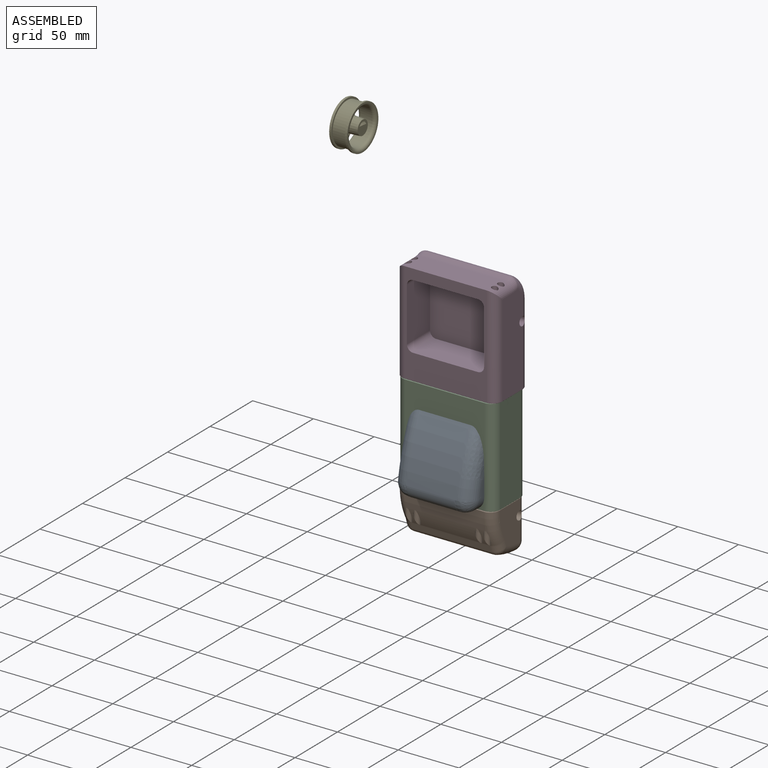
[diagram: assembled view]
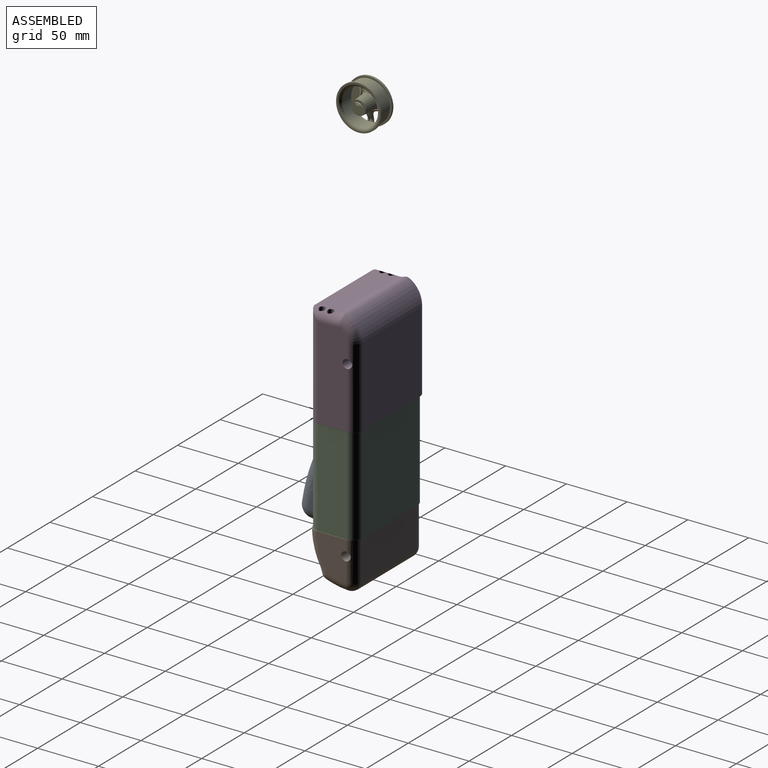
[diagram: assembled view, second angle]
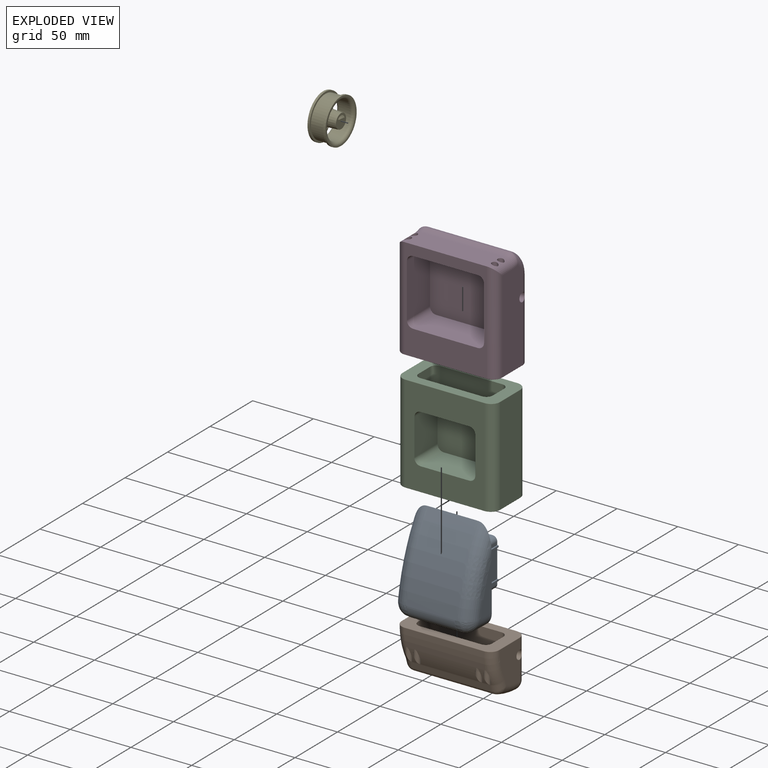
[diagram: exploded view]
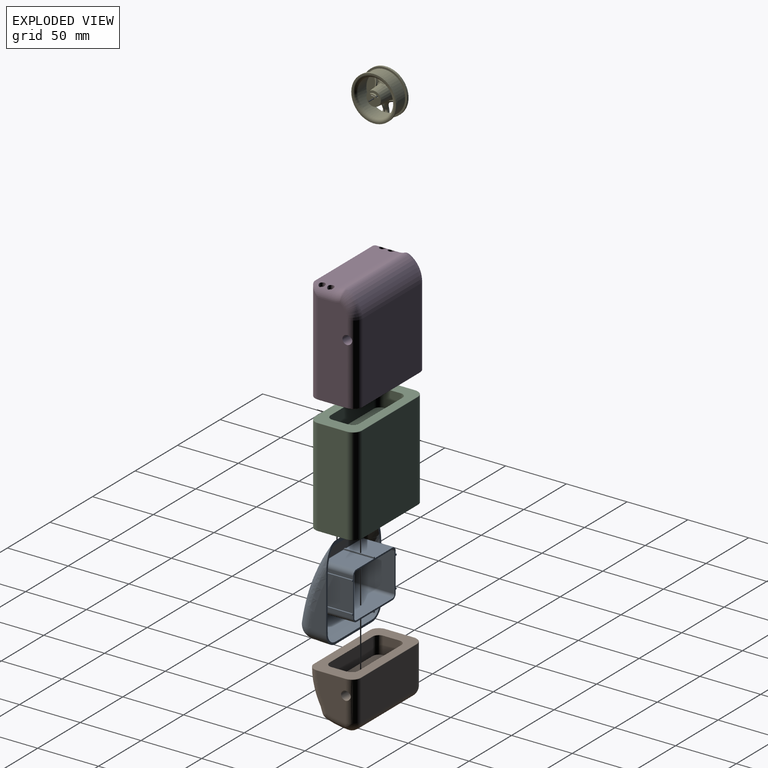
[diagram: exploded view, second angle]
ASSEMBLY  parts=5 mates=3
PART A: 98 faces, bbox 84.7x57.6x92.4 mm
  f0: torus R=130.98mm, axis (1,0,0), area 106.8mm2, adj f20,f27,f28,f29,f30,f33
  f1: torus R=130.98mm, axis (1,0,0), area 106.8mm2, adj f20,f23,f24,f25,f32,f34
  f2: bspline ~13.13x12.7mm, area 138.5mm2, adj f4,f5,f10
  f3: bspline ~13.13x12.7mm, area 138.5mm2, adj f4,f12,f14
  f4: cylinder r=10.16mm len=39.37mm, axis (1,0,0), area 642.2mm2, adj f2,f3,f11,f15
  f5: revolved ~66.6x35.76mm, area 1150.9mm2, adj f2,f15,f16,f21
  f6: revolved ~16.14x11.73mm, area 255.8mm2, adj f7,f18,f19,f21
  f7: plane 39.39x12.34mm, normal (-1,0,0), area 284.4mm2, adj f6,f21,f43
  f8: plane 39.4x12.34mm, normal (1,0,0), area 284.4mm2, adj f9,f21,f91
  f9: revolved ~16.14x11.73mm, area 255.8mm2, adj f8,f17,f18,f21
  f10: revolved ~16.33x13.5mm, area 298.4mm2, adj f2,f11,f16,f21
  f11: cylinder r=152.4mm len=39.37mm, axis (1,0,0), area 644.1mm2, adj f4,f10,f12,f21
  f12: revolved ~16.33x13.5mm, area 298.5mm2, adj f3,f11,f13,f21
  f13: plane 39.38x12.33mm, normal (-1,0,0), area 284.4mm2, adj f12,f14,f21
  f14: revolved ~66.6x35.76mm, area 1151.9mm2, adj f3,f13,f15,f21
  f15: cylinder r=152.4mm len=64.8mm, axis (1,0,0), area 2763mm2, adj f4,f5,f14,f21
  f16: plane 39.38x12.33mm, normal (1,0,0), area 284.4mm2, adj f5,f10,f21
  f17: bspline ~11.32x10.92mm, area 91mm2, adj f9,f22,f91
  f18: cylinder r=150.62mm len=39.37mm, axis (1,0,0), area 636.6mm2, adj f6,f9,f21,f22
  f19: bspline ~11.32x10.92mm, area 91mm2, adj f6,f22,f43
  f20: cylinder r=150.62mm len=39.37mm, axis (1,0,0), area 1437.8mm2, adj f0,f1,f26,f31
  f21: plane 92.36x79.91mm, normal (0,1,0), area 535.9mm2, adj f5,f6,f7,f8,f9,f10,f11,f12
  f22: cylinder r=8.38mm len=39.37mm, axis (1,0,0), area 529.8mm2, adj f17,f18,f19,f54
  f23: torus R=149.22mm, axis (1,0,0), area 60.6mm2, adj f1,f24,f34,f55
  f24: bspline ~2.83x2.54mm, area 7.1mm2, adj f1,f23,f25,f56
  f25: cylinder r=1.27mm len=1.59mm, axis (1,0.01,0), area 3.5mm2, adj f1,f24,f26,f57
  f26: cylinder r=1.27mm len=39.37mm, axis (-1,0,0), area 89.6mm2, adj f20,f25,f27,f57
  f27: cylinder r=1.27mm len=1.59mm, axis (1,-0.01,0), area 3.5mm2, adj f0,f26,f28,f57
  f28: bspline ~2.83x2.55mm, area 7.1mm2, adj f0,f27,f29,f58
  f29: torus R=149.23mm, axis (1,0,0), area 60.9mm2, adj f0,f28,f30,f59
  f30: bspline ~2.54x2.54mm, area 4.9mm2, adj f0,f29,f33,f60
  f31: cylinder r=1.27mm len=39.37mm, axis (1,0,0), area 55.4mm2, adj f20,f32,f33,f61
  f32: torus R=33.16mm, axis (0,0,1), area 2.2mm2, adj f1,f31,f34,f61
  f33: cylinder r=1.27mm len=1.6mm, axis (1,-0.01,0), area 2.2mm2, adj f0,f30,f31,f61
  f34: bspline ~2.54x2.54mm, area 4.9mm2, adj f1,f23,f32,f62
  f35: torus R=149.27mm, axis (1,0,0), area 1.3mm2, adj f36,f63,f64,f91
  f36: bspline ~4.18x4.07mm, area 2.8mm2, adj f35,f37,f65,f91
  f37: torus R=38.33mm, axis (0,0,1), area 0.5mm2, adj f36,f38,f66,f91
  f38: cylinder r=0.25mm len=19.05mm, axis (1,0,0), area 6.6mm2, adj f37,f54,f66,f67
  f39: cylinder r=0.25mm len=19.05mm, axis (1,0,0), area 6.6mm2, adj f40,f54,f69,f70
  f40: torus R=38.33mm, axis (0,0,1), area 0.5mm2, adj f39,f41,f43,f70
  f41: bspline ~4.18x4.08mm, area 2.8mm2, adj f40,f42,f43,f71
  f42: torus R=149.15mm, axis (1,0,0), area 1.3mm2, adj f41,f43,f72,f73
  f43: revolved ~63.43x32.65mm, area 820.6mm2, adj f7,f19,f21,f40,f41,f42,f44,f45
  f44: torus R=149.38mm, axis (1,0,0), area 13.2mm2, adj f43,f75,f76,f77
  f45: torus R=149.38mm, axis (1,0,0), area 1.5mm2, adj f43,f46,f79,f80
  f46: bspline ~4.19x4.18mm, area 3.3mm2, adj f43,f45,f47,f81
  f47: torus R=34.67mm, axis (0,0,1), area 0.8mm2, adj f43,f46,f48,f82
  f48: cylinder r=0.25mm len=19.05mm, axis (-1,0,0), area 9.9mm2, adj f47,f49,f82,f83
  f49: cylinder r=150.62mm len=39.37mm, axis (1,0,0), area 620.6mm2, adj f21,f43,f48,f51,f83,f84,f85,f91
  f50: torus R=34.67mm, axis (0,0,1), area 0.8mm2, adj f51,f52,f86,f91
  f51: cylinder r=0.25mm len=19.05mm, axis (-1,0,0), area 9.9mm2, adj f49,f50,f85,f86
  f52: bspline ~4.19x4.18mm, area 3.4mm2, adj f50,f53,f87,f91
  f53: torus R=149.17mm, axis (1,0,0), area 1.5mm2, adj f52,f88,f89,f91
  f54: cylinder r=150.62mm len=39.37mm, axis (1,0,0), area 341.9mm2, adj f22,f38,f39,f43,f67,f68,f69,f91
  f55: plane 36.78x31.51mm, normal (-1,0,0), area 1002.6mm2, adj f23,f56,f62,f93
  f56: cylinder r=2.54mm len=37.17mm, axis (0,-1,0), area 147.5mm2, adj f24,f55,f57,f93
  f57: plane 42.42x37.19mm, normal (0,0,1), area 1577.5mm2, adj f25,f26,f27,f56,f58,f93
  f58: cylinder r=2.54mm len=37.17mm, axis (0,-1,0), area 147.5mm2, adj f28,f57,f59,f93
  f59: plane 36.78x31.51mm, normal (1,0,0), area 1002.6mm2, adj f29,f58,f60,f93
  f60: cylinder r=2.54mm len=25.57mm, axis (0,-1,0), area 101mm2, adj f30,f59,f61,f93
  f61: plane 42.42x25.09mm, normal (0,0,-1), area 1064.3mm2, adj f31,f32,f33,f60,f62,f93
  f62: cylinder r=2.54mm len=25.57mm, axis (0,-1,0), area 101mm2, adj f34,f55,f61,f93
  f63: plane 36.61x1.12mm, normal (0,0,-1), area 40.7mm2, adj f35,f64,f90,f91,f93
  f64: plane 36.96x2.54mm, normal (-1,0,0), area 93.1mm2, adj f35,f63,f65,f93
  f65: cylinder r=3.81mm len=38.81mm, axis (0,-1,0), area 226.7mm2, adj f36,f64,f66,f93
  f66: plane 38.83x20.58mm, normal (0,0,-1), area 798.8mm2, adj f37,f38,f65,f67,f93
  f67: plane 39.26x1.12mm, normal (-1,0,0), area 43.7mm2, adj f38,f54,f66,f68,f93
  f68: plane 39.26x1.27mm, normal (0,0,-1), area 49.9mm2, adj f54,f67,f69,f93
  f69: plane 39.26x1.12mm, normal (1,0,0), area 43.7mm2, adj f39,f54,f68,f70,f93
  f70: plane 38.83x20.58mm, normal (0,0,-1), area 798.8mm2, adj f39,f40,f69,f71,f93
  f71: cylinder r=3.81mm len=38.81mm, axis (0,-1,0), area 226.7mm2, adj f41,f70,f72,f93
  f72: plane 36.96x2.54mm, normal (1,0,0), area 93.1mm2, adj f42,f71,f73,f93
  f73: plane 36.63x1.14mm, normal (0,0,-1), area 40.7mm2, adj f42,f43,f72,f74,f93
  f74: plane 36.15x1.28mm, normal (1,0,0), area 45.7mm2, adj f43,f73,f75,f93
  f75: plane 36.3x1.14mm, normal (0,0,1), area 40.4mm2, adj f43,f44,f74,f76,f93
  f76: plane 36.02x23.88mm, normal (1,0,0), area 768.2mm2, adj f44,f75,f77,f93
  f77: plane 27.88x1.15mm, normal (0,0,-1), area 30.9mm2, adj f43,f44,f76,f78,f93
  f78: plane 27.38x1.3mm, normal (1,0,0), area 34.4mm2, adj f43,f77,f79,f93
  f79: plane 27.3x1.14mm, normal (0,0,1), area 30.3mm2, adj f43,f45,f78,f80,f93
  f80: plane 26.99x2.54mm, normal (1,0,0), area 67mm2, adj f45,f79,f81,f93
  f81: cylinder r=3.81mm len=25.78mm, axis (0,-1,0), area 151.3mm2, adj f46,f80,f82,f93
  f82: plane 24.81x20.58mm, normal (0,0,1), area 510.4mm2, adj f47,f48,f81,f83,f93
  f83: plane 25.06x1.12mm, normal (1,0,0), area 27.8mm2, adj f48,f49,f82,f84,f93
  f84: plane 24.64x1.27mm, normal (0,0,1), area 31.3mm2, adj f49,f83,f85,f93
  f85: plane 25.06x1.12mm, normal (-1,0,0), area 27.8mm2, adj f49,f51,f84,f86,f93
  f86: plane 24.81x20.58mm, normal (0,0,1), area 510.4mm2, adj f50,f51,f85,f87,f93
  f87: cylinder r=3.81mm len=25.78mm, axis (0,-1,0), area 151.3mm2, adj f52,f86,f88,f93
  f88: plane 26.99x2.54mm, normal (-1,0,0), area 67mm2, adj f53,f87,f89,f93
  f89: plane 27.3x1.15mm, normal (0,0,1), area 30.1mm2, adj f53,f88,f91,f92,f93
  f90: plane 36.16x1.29mm, normal (-1,0,0), area 45.7mm2, adj f63,f91,f93,f94
  f91: revolved ~63.43x32.65mm, area 822.9mm2, adj f8,f17,f21,f35,f36,f37,f49,f50
  f92: plane 27.34x1.27mm, normal (-1,0,0), area 34.2mm2, adj f89,f91,f93,f95
  f93: plane 52.27x41.35mm, normal (0,1,0), area 221.6mm2, adj f55,f56,f57,f58,f59,f60,f61,f62
  f94: plane 36.31x1.14mm, normal (0,0,1), area 40.2mm2, adj f90,f91,f93,f96,f97
  f95: plane 27.86x1.13mm, normal (0,0,-1), area 30.9mm2, adj f91,f92,f93,f96,f97
  f96: plane 36.02x23.88mm, normal (-1,0,0), area 768.2mm2, adj f93,f94,f95,f97
  f97: torus R=149.38mm, axis (1,0,0), area 13.1mm2, adj f91,f94,f95,f96
PART B: 56 faces, bbox 82.8x45.3x42.4 mm
  f0: bspline ~7.62x6.85mm, area 22.5mm2, adj f5,f6,f7
  f1: cone r=1.84mm half-angle=59deg, axis (1,0,0), area 49.7mm2, adj f8
  f2: plane 71.93x0.99mm, normal (0,-0.35,-0.94), area 56.5mm2, adj f3,f9,f10,f16
  f3: plane 72.71x2.57mm, normal (0,0.79,-0.61), area 138.5mm2, adj f2,f4,f9,f16
  f4: cylinder r=7.62mm len=65.28mm, axis (-1,0,0), area 232.7mm2, adj f3,f9,f16,f17
  f5: cylinder r=5.08mm len=65.28mm, axis (1,0,0), area 290mm2, adj f0,f17,f18,f19
  f6: cylinder r=7.62mm len=8.9mm, axis (0,-0.32,0.95), area 56mm2, adj f0,f14,f19,f21
  f7: torus R=52.23mm, axis (-1,0,0), area 215.2mm2, adj f0,f9,f17,f21
  f8: cylinder r=3.68mm len=8.89mm, axis (-1,0,0), area 200.2mm2, adj f1,f21,f22
  f9: sphere r=7.62mm, area 89.3mm2, adj f2,f3,f4,f7,f10,f22
  f10: cylinder r=7.62mm len=65.28mm, axis (-1,0,0), area 418.6mm2, adj f2,f9,f16,f23
  f11: cone r=1.27mm half-angle=59deg, axis (0,0,-1), area 23.6mm2, adj f25
  f12: cone r=1.27mm half-angle=59deg, axis (0,0,-1), area 23.6mm2, adj f26
  f13: cone r=1.27mm half-angle=59deg, axis (0,0,-1), area 23.6mm2, adj f28
  f14: torus R=12.7mm, axis (1,0,0), area 15.8mm2, adj f6,f21,f27,f28,f29
  f15: cone r=1.84mm half-angle=59deg, axis (-1,0,0), area 49.7mm2, adj f30
  f16: sphere r=7.62mm, area 80mm2, adj f2,f3,f4,f10,f31,f32
  f17: cylinder r=59.85mm len=65.28mm, axis (1,0,0), area 1273.5mm2, adj f4,f5,f7,f32
  f18: bspline ~7.62x6.85mm, area 22.5mm2, adj f5,f32,f33
  f19: plane 65.28x5.01mm, normal (0,-0.95,-0.32), area 344.7mm2, adj f5,f6,f27,f33
  f20: plane 60.96x23.62mm, normal (0,0,1), area 1417.8mm2, adj f34,f35,f36,f37,f38,f39,f40,f41
  f21: plane 32.7x23.62mm, normal (1,0,0), area 619mm2, adj f6,f7,f8,f14,f22,f29,f42
  f22: cylinder r=7.62mm len=32.7mm, axis (0,0,-1), area 377.3mm2, adj f8,f9,f21,f23,f43
  f23: plane 65.28x32.7mm, normal (0,1,0), area 2134.9mm2, adj f10,f22,f31,f44
  f24: cone r=1.27mm half-angle=59deg, axis (0,0,-1), area 23.6mm2, adj f47
  f25: cylinder r=2.54mm len=12.39mm, axis (0,0,1), area 108.1mm2, adj f11,f27,f48
  f26: cylinder r=2.54mm len=12.39mm, axis (0,0,1), area 108.1mm2, adj f12,f27,f48
  f27: cylinder r=5.08mm len=65.28mm, axis (1,0,0), area 54.1mm2, adj f14,f19,f25,f26,f28,f46,f47,f48
  f28: cylinder r=2.54mm len=12.74mm, axis (0,0,1), area 106.8mm2, adj f13,f14,f27,f29,f48
  f29: torus R=50.82mm, axis (-1,0,0), area 308.1mm2, adj f14,f21,f28,f45,f48
  f30: cylinder r=3.68mm len=8.89mm, axis (-1,0,0), area 200.2mm2, adj f15,f31,f50
  f31: cylinder r=7.62mm len=32.7mm, axis (0,0,-1), area 377.3mm2, adj f16,f23,f30,f49,f50
  f32: torus R=52.23mm, axis (1,0,0), area 215.2mm2, adj f16,f17,f18,f50
  f33: cylinder r=7.62mm len=8.9mm, axis (0,0.32,-0.95), area 56mm2, adj f18,f19,f46,f50
  f34: plane 14.48x13.46mm, normal (-1,0,0), area 194.9mm2, adj f20,f35,f41,f51
  f35: cylinder r=5.08mm len=14.48mm, axis (0,0,-1), area 115.5mm2, adj f20,f34,f36,f51
  f36: plane 50.8x14.48mm, normal (0,1,0), area 735.5mm2, adj f20,f35,f37,f51
  f37: cylinder r=5.08mm len=14.48mm, axis (0,0,-1), area 115.5mm2, adj f20,f36,f38,f51
  f38: plane 14.48x13.46mm, normal (1,0,0), area 194.9mm2, adj f20,f37,f39,f51
  f39: cylinder r=5.08mm len=14.48mm, axis (0,0,-1), area 115.5mm2, adj f20,f38,f40,f51
  f40: plane 50.8x14.48mm, normal (0,-1,0), area 735.5mm2, adj f20,f39,f41,f51
  f41: cylinder r=5.08mm len=14.48mm, axis (0,0,-1), area 115.5mm2, adj f20,f34,f40,f51
  f42: cylinder r=0.25mm len=23.62mm, axis (0,-1,0), area 9.4mm2, adj f21,f43,f45,f51
  f43: torus R=7.37mm, axis (0,0,-1), area 4.7mm2, adj f22,f42,f44,f51
  f44: cylinder r=0.25mm len=65.28mm, axis (1,0,0), area 26mm2, adj f23,f43,f49,f51
  f45: torus R=7.37mm, axis (0,0,1), area 4.7mm2, adj f29,f42,f51,f52
  f46: torus R=12.7mm, axis (-1,0,0), area 15.8mm2, adj f27,f33,f47,f50,f53
  f47: cylinder r=2.54mm len=12.74mm, axis (0,0,1), area 106.9mm2, adj f24,f27,f46,f48,f53
  f48: cylinder r=58.44mm len=65.28mm, axis (1,0,0), area 1699.7mm2, adj f25,f26,f27,f28,f29,f47,f52,f53
  f49: torus R=7.37mm, axis (0,0,-1), area 4.7mm2, adj f31,f44,f51,f54
  f50: plane 32.7x23.62mm, normal (-1,0,0), area 619mm2, adj f30,f31,f32,f33,f46,f53,f54
  f51: plane 80.03x38.38mm, normal (0,0,1), area 1604.2mm2, adj f34,f35,f36,f37,f38,f39,f40,f41
  f52: cylinder r=0.25mm len=65.28mm, axis (-1,0,0), area 26.1mm2, adj f45,f48,f51,f55
  f53: torus R=50.82mm, axis (1,0,0), area 308.1mm2, adj f46,f47,f48,f50,f55
  f54: cylinder r=0.25mm len=23.62mm, axis (0,1,0), area 9.4mm2, adj f49,f50,f51,f55
  f55: torus R=7.37mm, axis (0,0,1), area 4.7mm2, adj f51,f52,f53,f54
PART C: 53 faces, bbox 81.8x40.1x80.5 mm
  f0: plane 63.5x25.4mm, normal (0,0,-1), area 1590.7mm2, adj f1,f2,f3,f4,f5,f6,f7,f8
  f1: cylinder r=5.08mm len=14.48mm, axis (0,0,1), area 115.5mm2, adj f0,f2,f8,f21
  f2: plane 53.34x14.48mm, normal (0,1,0), area 772.3mm2, adj f0,f1,f3,f21
  f3: cylinder r=5.08mm len=14.48mm, axis (0,0,1), area 115.5mm2, adj f0,f2,f4,f21
  f4: plane 15.24x14.48mm, normal (1,0,0), area 220.6mm2, adj f0,f3,f5,f21
  f5: cylinder r=5.08mm len=14.48mm, axis (0,0,1), area 115.5mm2, adj f0,f4,f6,f21
  f6: plane 53.34x14.48mm, normal (0,-1,0), area 772.3mm2, adj f0,f5,f7,f21
  f7: cylinder r=5.08mm len=14.48mm, axis (0,0,1), area 115.5mm2, adj f0,f6,f8,f21
  f8: plane 15.24x14.48mm, normal (-1,0,0), area 220.6mm2, adj f0,f1,f7,f21
  f9: cylinder r=0.25mm len=65.28mm, axis (-1,0,0), area 26mm2, adj f10,f12,f16,f21
  f10: torus R=7.37mm, axis (0,0,1), area 4.7mm2, adj f9,f11,f17,f21
  f11: cylinder r=0.25mm len=23.62mm, axis (0,-1,0), area 9.4mm2, adj f10,f19,f20,f21
  f12: torus R=7.37mm, axis (0,0,1), area 4.7mm2, adj f9,f13,f15,f21
  f13: cylinder r=0.25mm len=23.62mm, axis (0,1,0), area 9.4mm2, adj f12,f21,f22,f23
  f14: plane 60.96x23.62mm, normal (0,0,1), area 1417.8mm2, adj f24,f25,f26,f27,f28,f29,f30,f31
  f15: cylinder r=7.62mm len=80.01mm, axis (0,0,-1), area 957.7mm2, adj f12,f16,f23,f33
  f16: plane 80.01x65.28mm, normal (0,1,0), area 5222.9mm2, adj f9,f15,f17,f34
  f17: cylinder r=7.62mm len=80.01mm, axis (0,0,-1), area 957.7mm2, adj f10,f16,f19,f35
  f18: plane 50.17x40.39mm, normal (0,-1,0), area 2003.8mm2, adj f37,f38,f39,f40,f41,f42,f43,f44
  f19: plane 80.01x23.62mm, normal (-1,0,0), area 1890mm2, adj f11,f17,f36,f45
  f20: torus R=7.37mm, axis (0,0,1), area 4.7mm2, adj f11,f21,f45,f46
  f21: plane 80.01x38.35mm, normal (0,0,-1), area 1431.4mm2, adj f1,f2,f3,f4,f5,f6,f7,f8
  f22: torus R=7.37mm, axis (0,0,1), area 4.7mm2, adj f13,f21,f46,f47
  f23: plane 80.01x23.62mm, normal (1,0,0), area 1890mm2, adj f13,f15,f32,f47
  f24: plane 14.48x13.46mm, normal (1,0,0), area 194.9mm2, adj f14,f25,f31,f49
  f25: cylinder r=5.08mm len=14.48mm, axis (0,0,-1), area 115.5mm2, adj f14,f24,f26,f49
  f26: plane 50.8x14.48mm, normal (0,-1,0), area 735.5mm2, adj f14,f25,f27,f49
  f27: cylinder r=5.08mm len=14.48mm, axis (0,0,-1), area 115.5mm2, adj f14,f26,f28,f49
  f28: plane 14.48x13.46mm, normal (-1,0,0), area 194.9mm2, adj f14,f27,f29,f49
  f29: cylinder r=5.08mm len=14.48mm, axis (0,0,-1), area 115.5mm2, adj f14,f28,f30,f49
  f30: plane 50.8x14.48mm, normal (0,1,0), area 735.5mm2, adj f14,f29,f31,f49
  f31: cylinder r=5.08mm len=14.48mm, axis (0,0,-1), area 115.5mm2, adj f14,f24,f30,f49
  f32: cylinder r=0.25mm len=23.62mm, axis (0,-1,0), area 9.4mm2, adj f23,f33,f48,f49
  f33: torus R=7.37mm, axis (0,0,-1), area 4.7mm2, adj f15,f32,f34,f49
  f34: cylinder r=0.25mm len=65.28mm, axis (1,0,0), area 26mm2, adj f16,f33,f35,f49
  f35: torus R=7.37mm, axis (0,0,-1), area 4.7mm2, adj f17,f34,f36,f49
  f36: cylinder r=0.25mm len=23.62mm, axis (0,1,0), area 9.4mm2, adj f19,f35,f49,f50
  f37: plane 30.23x27.18mm, normal (1,0,0), area 821.5mm2, adj f18,f38,f44,f51
  f38: cylinder r=5.08mm len=27.18mm, axis (0,1,0), area 216.9mm2, adj f18,f37,f39,f51
  f39: plane 40.01x27.18mm, normal (0,0,-1), area 1087.3mm2, adj f18,f38,f40,f51
  f40: cylinder r=5.08mm len=27.18mm, axis (0,1,0), area 216.9mm2, adj f18,f39,f41,f51
  f41: plane 30.23x27.18mm, normal (-1,0,0), area 821.5mm2, adj f18,f40,f42,f51
  f42: cylinder r=5.08mm len=27.18mm, axis (0,1,0), area 216.9mm2, adj f18,f41,f43,f51
  f43: plane 40.01x27.18mm, normal (0,0,1), area 1087.3mm2, adj f18,f42,f44,f51
  f44: cylinder r=5.08mm len=27.18mm, axis (0,1,0), area 216.9mm2, adj f18,f37,f43,f51
  f45: cylinder r=7.62mm len=80.01mm, axis (0,0,-1), area 957.7mm2, adj f19,f20,f50,f51
  f46: cylinder r=0.25mm len=65.28mm, axis (1,0,0), area 26mm2, adj f20,f21,f22,f51
  f47: cylinder r=7.62mm len=80.01mm, axis (0,0,-1), area 957.7mm2, adj f22,f23,f48,f51
  f48: torus R=7.37mm, axis (0,0,-1), area 4.7mm2, adj f32,f47,f49,f52
  f49: plane 80.01x38.35mm, normal (0,0,1), area 1604.3mm2, adj f24,f25,f26,f27,f28,f29,f30,f31
  f50: torus R=7.37mm, axis (0,0,-1), area 4.7mm2, adj f36,f45,f49,f52
  f51: plane 80.01x65.28mm, normal (0,-1,0), area 3219.1mm2, adj f37,f38,f39,f40,f41,f42,f43,f44
  f52: cylinder r=0.25mm len=65.28mm, axis (-1,0,0), area 26mm2, adj f48,f49,f50,f51
PART D: 62 faces, bbox 83.9x41.5x86.5 mm
  f0: cone r=1.27mm half-angle=59deg, axis (0,0,1), area 23.6mm2, adj f6
  f1: cone r=1.27mm half-angle=59deg, axis (0,0,1), area 23.6mm2, adj f7
  f2: plane 63.5x54.15mm, normal (0,-1,0), area 3416.4mm2, adj f10,f11,f12,f13,f14,f15,f16,f17
  f3: cone r=1.84mm half-angle=59deg, axis (-1,0,0), area 49.7mm2, adj f18
  f4: cone r=1.27mm half-angle=59deg, axis (0,0,1), area 23.6mm2, adj f25
  f5: cone r=1.27mm half-angle=59deg, axis (0,0,1), area 23.6mm2, adj f26
  f6: cylinder r=2.54mm len=5.08mm, axis (0,0,-1), area 42.3mm2, adj f0,f9,f27
  f7: cylinder r=2.54mm len=5.08mm, axis (0,0,-1), area 42.3mm2, adj f1,f9,f27
  f8: torus R=22.04mm, axis (1,0,0), area 73.2mm2, adj f9,f19,f20,f24,f29
  f9: cylinder r=7.62mm len=19.05mm, axis (0,1,0), area 143.2mm2, adj f6,f7,f8,f27,f29,f30
  f10: plane 43.99x27.18mm, normal (-1,0,0), area 1195.6mm2, adj f2,f11,f17,f31
  f11: cylinder r=5.08mm len=27.18mm, axis (0,1,0), area 216.9mm2, adj f2,f10,f12,f31
  f12: plane 53.34x27.18mm, normal (0,0,1), area 1449.7mm2, adj f2,f11,f13,f31
  f13: cylinder r=5.08mm len=27.18mm, axis (0,1,0), area 216.9mm2, adj f2,f12,f14,f31
  f14: plane 43.99x27.18mm, normal (1,0,0), area 1195.6mm2, adj f2,f13,f15,f31
  f15: cylinder r=5.08mm len=27.18mm, axis (0,1,0), area 216.9mm2, adj f2,f14,f16,f31
  f16: plane 53.34x27.18mm, normal (0,0,-1), area 1449.7mm2, adj f2,f15,f17,f31
  f17: cylinder r=5.08mm len=27.18mm, axis (0,1,0), area 216.9mm2, adj f2,f10,f16,f31
  f18: cylinder r=3.68mm len=8.89mm, axis (-1,0,0), area 200.2mm2, adj f3,f29,f32
  f19: bspline ~7.92x6.1mm, area 12.3mm2, adj f8,f20,f22,f35
  f20: bspline ~2.72x2.15mm, area 3.1mm2, adj f8,f19,f21,f35
  f21: cylinder r=2.54mm len=67.44mm, axis (-1,0,0), area 82mm2, adj f20,f23,f24,f35
  f22: torus R=13.22mm, axis (-1,0,0), area 233.4mm2, adj f19,f29,f32,f34,f35
  f23: bspline ~2.72x2.13mm, area 3.1mm2, adj f21,f33,f35,f37
  f24: cylinder r=14.42mm len=67.44mm, axis (1,0,0), area 375.5mm2, adj f8,f21,f27,f37
  f25: cylinder r=2.54mm len=5.08mm, axis (0,0,-1), area 42.3mm2, adj f4,f27,f38
  f26: cylinder r=2.54mm len=5.08mm, axis (0,0,-1), area 42.3mm2, adj f5,f27,f38
  f27: plane 67.44x19.05mm, normal (0,0,1), area 1278mm2, adj f6,f7,f9,f24,f25,f26,f31,f38
  f28: plane 63.5x25.4mm, normal (0,0,-1), area 1590.7mm2, adj f40,f41,f42,f43,f44,f45,f46,f47
  f29: plane 76.8x23.93mm, normal (-1,0,0), area 1781.3mm2, adj f8,f9,f18,f22,f30,f32,f48
  f30: cylinder r=7.62mm len=83.46mm, axis (0,0,1), area 953.4mm2, adj f9,f29,f31,f49
  f31: plane 83.46x67.44mm, normal (0,-1,0), area 2212.2mm2, adj f10,f11,f12,f13,f14,f15,f16,f17
  f32: cylinder r=7.62mm len=65.68mm, axis (0,0,1), area 772mm2, adj f18,f22,f29,f52,f53
  f33: bspline ~7.92x6.1mm, area 12.3mm2, adj f23,f35,f37,f54
  f34: cylinder r=20.84mm len=67.44mm, axis (1,0,0), area 1467.8mm2, adj f22,f35,f53,f54
  f35: cylinder r=7.62mm len=71.03mm, axis (1,0,0), area 229.6mm2, adj f19,f20,f21,f22,f23,f33,f34,f54
  f36: cone r=1.84mm half-angle=59deg, axis (1,0,0), area 49.7mm2, adj f55
  f37: torus R=22.04mm, axis (-1,0,0), area 73.2mm2, adj f23,f24,f33,f38,f56
  f38: cylinder r=7.62mm len=19.05mm, axis (0,-1,0), area 143.2mm2, adj f25,f26,f27,f37,f39,f56
  f39: cylinder r=7.62mm len=83.46mm, axis (0,0,1), area 953.4mm2, adj f31,f38,f51,f56
  f40: cylinder r=5.08mm len=14.48mm, axis (0,0,1), area 115.5mm2, adj f28,f41,f47,f58
  f41: plane 53.34x14.48mm, normal (0,1,0), area 772.3mm2, adj f28,f40,f42,f58
  f42: cylinder r=5.08mm len=14.48mm, axis (0,0,1), area 115.5mm2, adj f28,f41,f43,f58
  f43: plane 15.24x14.48mm, normal (1,0,0), area 220.6mm2, adj f28,f42,f44,f58
  f44: cylinder r=5.08mm len=14.48mm, axis (0,0,1), area 115.5mm2, adj f28,f43,f45,f58
  f45: plane 53.34x14.48mm, normal (0,-1,0), area 772.3mm2, adj f28,f44,f46,f58
  f46: cylinder r=5.08mm len=14.48mm, axis (0,0,1), area 115.5mm2, adj f28,f45,f47,f58
  f47: plane 15.24x14.48mm, normal (-1,0,0), area 220.6mm2, adj f28,f40,f46,f58
  f48: cylinder r=0.25mm len=23.93mm, axis (0,1,0), area 9.5mm2, adj f29,f49,f52,f58
  f49: torus R=7.37mm, axis (0,0,1), area 4.7mm2, adj f30,f48,f50,f58
  f50: cylinder r=0.25mm len=67.44mm, axis (-1,0,0), area 26.9mm2, adj f31,f49,f51,f58
  f51: torus R=7.37mm, axis (0,0,1), area 4.7mm2, adj f39,f50,f57,f58
  f52: torus R=7.37mm, axis (0,0,1), area 4.7mm2, adj f32,f48,f58,f59
  f53: plane 67.44x65.68mm, normal (0,1,0), area 4429.6mm2, adj f32,f34,f59,f60
  f54: torus R=13.22mm, axis (1,0,0), area 233.4mm2, adj f33,f34,f35,f56,f60
  f55: cylinder r=3.68mm len=8.89mm, axis (-1,0,0), area 200.2mm2, adj f36,f56,f60
  f56: plane 76.8x23.93mm, normal (1,0,0), area 1781.3mm2, adj f37,f38,f39,f54,f55,f57,f60
  f57: cylinder r=0.25mm len=23.93mm, axis (0,-1,0), area 9.5mm2, adj f51,f56,f58,f61
  f58: plane 82.17x38.66mm, normal (0,0,-1), area 1539.2mm2, adj f40,f41,f42,f43,f44,f45,f46,f47
  f59: cylinder r=0.25mm len=67.44mm, axis (1,0,0), area 26.9mm2, adj f52,f53,f58,f61
  f60: cylinder r=7.62mm len=65.68mm, axis (0,0,1), area 772.1mm2, adj f53,f54,f55,f56,f61
  f61: torus R=7.37mm, axis (0,0,1), area 4.7mm2, adj f57,f58,f59,f60
PART E: 127 faces, bbox 16x41.1x41.1 mm
  f0: plane 37.51x37.51mm, normal (-1,0,0), area -60mm2, adj f1,f2
  f1: cylinder r=16.89mm len=33.78mm, axis (1,0,0), area 1186.1mm2, adj f0,f12
  f2: cylinder r=18.41mm len=36.83mm, axis (1,0,0), area 205.7mm2, adj f0,f19
  f3: bspline ~7.7x3.15mm, area 4.1mm2, adj f4,f21,f22,f33
  f4: torus R=11.46mm, axis (0.93,-0.36,-0.03), area 1.1mm2, adj f3,f15,f23,f33
  f5: torus R=11.46mm, axis (0.93,-0.31,-0.19), area 1.1mm2, adj f6,f14,f27,f33
  f6: bspline ~6.62x4.95mm, area 4.1mm2, adj f5,f7,f28,f33
  f7: torus R=11.46mm, axis (0.93,-0.08,-0.36), area 1.1mm2, adj f6,f18,f29,f33
  f8: cylinder r=4.19mm len=8.38mm, axis (1,0,0), area 109.1mm2, adj f11,f30
  f9: torus R=11.46mm, axis (0.93,0.08,-0.36), area 1.1mm2, adj f10,f17,f31,f33
  f10: bspline ~6.62x4.93mm, area 4.1mm2, adj f9,f20,f32,f33
  f11: torus R=4.45mm, axis (1,0,0), area 8.2mm2, adj f8,f33
  f12: plane 37.51x37.51mm, normal (1,0,0), area -977.8mm2, adj f1,f34
  f13: torus R=13.77mm, axis (1,0,0), area 19.8mm2, adj f14,f15,f33,f35
  f14: bspline ~4.52x2.73mm, area 2.1mm2, adj f5,f13,f27,f36
  f15: bspline ~5.09x1.41mm, area 2.1mm2, adj f4,f13,f23,f41
  f16: torus R=13.77mm, axis (1,0,0), area 19.8mm2, adj f17,f18,f33,f42
  f17: bspline ~5.01x1.41mm, area 2.1mm2, adj f9,f16,f31,f43
  f18: bspline ~5.01x1.41mm, area 2.1mm2, adj f7,f16,f29,f48
  f19: plane 36.9x36.9mm, normal (1,0,0), area 114.3mm2, adj f2,f49
  f20: torus R=11.46mm, axis (0.93,0.31,-0.19), area 1.1mm2, adj f10,f33,f53,f54
  f21: torus R=11.46mm, axis (0.93,-0.28,0.24), area 1.1mm2, adj f3,f33,f56,f57
  f22: cylinder r=6.35mm len=7.48mm, axis (1,0,0), area 20.4mm2, adj f3,f23,f57,f59
  f23: cylinder r=9.96mm len=6.58mm, axis (1,0,0), area 13.1mm2, adj f4,f15,f22,f39,f40,f59
  f24: torus R=11.46mm, axis (0.93,0.14,0.34), area 1.1mm2, adj f25,f33,f51,f60
  f25: bspline ~8.1x1.71mm, area 4.1mm2, adj f24,f26,f33,f61
  f26: torus R=11.46mm, axis (0.93,-0.14,0.34), area 1.1mm2, adj f25,f33,f58,f62
  f27: cylinder r=9.96mm len=6.27mm, axis (1,0,0), area 13.1mm2, adj f5,f14,f28,f37,f38,f66
  f28: cylinder r=6.35mm len=6.36mm, axis (1,0,0), area 20.4mm2, adj f6,f27,f29,f66
  f29: cylinder r=9.96mm len=6.76mm, axis (1,0,0), area 13.1mm2, adj f7,f18,f28,f46,f47,f66
  f30: plane 8.5x8.38mm, normal (-1,0,0), area 9.6mm2, adj f8,f69
  f31: cylinder r=9.96mm len=6.76mm, axis (1,0,0), area 13.1mm2, adj f9,f17,f32,f44,f45,f71
  f32: cylinder r=6.35mm len=6.36mm, axis (1,0,0), area 20.4mm2, adj f10,f31,f53,f71
  f33: cone r=5.98mm half-angle=69.1deg, axis (-1,0,0), area 222.4mm2, adj f3,f4,f5,f6,f7,f9,f10,f11
  f34: cylinder r=18.41mm len=36.83mm, axis (1,0,0), area 205.7mm2, adj f12,f77
  f35: torus R=17.23mm, axis (1,0,0), area 1mm2, adj f13,f36,f41,f115
  f36: bspline ~0.8x0.4mm, area 0.2mm2, adj f14,f35,f37,f115
  f37: torus R=2.76mm, axis (0.11,-0.67,0.73), area 0.8mm2, adj f27,f36,f38,f115
  f38: torus R=13.77mm, axis (1,0,0), area 3mm2, adj f27,f37,f65,f66,f115
  f39: torus R=13.77mm, axis (1,0,0), area 3mm2, adj f23,f40,f59,f63,f115
  f40: torus R=2.76mm, axis (-0.11,0.11,0.99), area 0.8mm2, adj f23,f39,f41,f115
  f41: bspline ~0.69x0.52mm, area 0.2mm2, adj f15,f35,f40,f115
  f42: torus R=17.23mm, axis (1,0,0), area 1mm2, adj f16,f43,f48,f115
  f43: bspline ~0.75x0.38mm, area 0.2mm2, adj f17,f42,f44,f115
  f44: torus R=2.76mm, axis (0.11,-0.91,-0.41), area 0.8mm2, adj f31,f43,f45,f115
  f45: torus R=13.77mm, axis (1,0,0), area 3mm2, adj f31,f44,f70,f71,f115
  f46: torus R=13.77mm, axis (1,0,0), area 3mm2, adj f29,f47,f66,f67,f115
  f47: torus R=2.76mm, axis (-0.11,-0.91,0.41), area 0.8mm2, adj f29,f46,f48,f115
  f48: bspline ~0.75x0.39mm, area 0.2mm2, adj f18,f42,f47,f115
  f49: torus R=17.4mm, axis (1,0,0), area 395.6mm2, adj f19,f78
  f50: torus R=13.77mm, axis (1,0,0), area 19.8mm2, adj f33,f51,f75,f80
  f51: bspline ~4.75x2.29mm, area 2.1mm2, adj f24,f50,f60,f81
  f52: torus R=13.77mm, axis (1,0,0), area 19.8mm2, adj f33,f54,f73,f83
  f53: cylinder r=9.96mm len=6.27mm, axis (1,0,0), area 13.1mm2, adj f20,f32,f54,f71,f86,f87
  f54: bspline ~4.48x2.68mm, area 2.1mm2, adj f20,f52,f53,f88
  f55: torus R=13.77mm, axis (1,0,0), area 19.8mm2, adj f33,f56,f58,f89
  f56: bspline ~3.91x3.57mm, area 2.1mm2, adj f21,f55,f57,f90
  f57: cylinder r=9.96mm len=5.18mm, axis (1,0,0), area 13.1mm2, adj f21,f22,f56,f59,f91,f92
  f58: bspline ~4.69x2.27mm, area 2.1mm2, adj f26,f55,f62,f97
  f59: cone r=6.13mm half-angle=69.1deg, axis (-1,0,0), area 15.9mm2, adj f22,f23,f39,f57,f63,f92,f93,f99
  f60: cylinder r=9.96mm len=5.75mm, axis (1,0,0), area 13.1mm2, adj f24,f51,f61,f82,f100,f101
  f61: cylinder r=6.35mm len=7.86mm, axis (1,0,0), area 20.4mm2, adj f25,f60,f62,f101
  f62: cylinder r=9.96mm len=5.75mm, axis (1,0,0), area 13.1mm2, adj f26,f58,f61,f95,f96,f101
  f63: cylinder r=10.98mm len=6.39mm, axis (1,0,0), area 9.5mm2, adj f39,f59,f64,f99,f104,f115
  f64: torus R=13.77mm, axis (1,0,0), area 7.1mm2, adj f63,f65,f104,f115
  f65: cylinder r=10.98mm len=6.26mm, axis (1,0,0), area 9.5mm2, adj f38,f64,f66,f104,f105,f115
  f66: cone r=6.13mm half-angle=69.1deg, axis (-1,0,0), area 15.9mm2, adj f27,f28,f29,f38,f46,f65,f67,f105
  f67: cylinder r=10.98mm len=6.65mm, axis (1,0,0), area 9.5mm2, adj f46,f66,f68,f105,f106,f115
  f68: torus R=13.77mm, axis (1,0,0), area 7.1mm2, adj f67,f70,f106,f115
  f69: cone r=3.81mm half-angle=3deg, axis (1,0,0), area 212.5mm2, adj f30,f107
  f70: cylinder r=10.98mm len=6.65mm, axis (1,0,0), area 9.5mm2, adj f45,f68,f71,f106,f108,f115
  f71: cone r=6.13mm half-angle=69.1deg, axis (-1,0,0), area 15.9mm2, adj f31,f32,f45,f53,f70,f86,f108,f109
  f72: torus R=11.46mm, axis (0.93,0.36,-0.03), area 1.1mm2, adj f33,f73,f74,f112
  f73: bspline ~5.09x1.41mm, area 2.1mm2, adj f52,f72,f84,f112
  f74: bspline ~7.7x3.15mm, area 4.1mm2, adj f33,f72,f76,f113
  f75: bspline ~3.86x3.54mm, area 2.1mm2, adj f50,f76,f79,f114
  f76: torus R=11.46mm, axis (0.93,0.28,0.24), area 1.1mm2, adj f33,f74,f75,f114
  f77: plane 37.51x37.51mm, normal (-1,0,0), area 1408.7mm2, adj f34,f115
  f78: cylinder r=14.86mm len=29.72mm, axis (1,0,0), area 901.1mm2, adj f49,f115
  f79: bspline ~0.78x0.5mm, area 0.2mm2, adj f75,f80,f98,f115
  f80: torus R=17.23mm, axis (1,0,0), area 1mm2, adj f50,f79,f81,f115
  f81: bspline ~0.68x0.6mm, area 0.2mm2, adj f51,f80,f82,f115
  f82: torus R=2.76mm, axis (-0.11,-0.97,0.2), area 0.8mm2, adj f60,f81,f100,f115
  f83: torus R=17.23mm, axis (1,0,0), area 1mm2, adj f52,f84,f88,f115
  f84: bspline ~0.68x0.52mm, area 0.2mm2, adj f73,f83,f85,f115
  f85: torus R=2.76mm, axis (-0.11,-0.11,0.99), area 0.8mm2, adj f84,f111,f112,f115
  f86: torus R=13.77mm, axis (1,0,0), area 3mm2, adj f53,f71,f87,f109,f115
  f87: torus R=2.76mm, axis (-0.11,-0.67,-0.73), area 0.8mm2, adj f53,f86,f88,f115
  f88: bspline ~0.8x0.4mm, area 0.2mm2, adj f54,f83,f87,f115
  f89: torus R=17.23mm, axis (1,0,0), area 1mm2, adj f55,f90,f97,f115
  f90: bspline ~0.78x0.5mm, area 0.2mm2, adj f56,f89,f91,f115
  f91: torus R=2.76mm, axis (0.11,0.49,0.86), area 0.8mm2, adj f57,f90,f92,f115
  f92: torus R=13.77mm, axis (1,0,0), area 3mm2, adj f57,f59,f91,f93,f115
  f93: cylinder r=10.98mm len=5.25mm, axis (1,0,0), area 9.5mm2, adj f59,f92,f94,f99,f103,f115
  f94: torus R=13.77mm, axis (1,0,0), area 7.1mm2, adj f93,f102,f103,f115
  f95: torus R=13.77mm, axis (1,0,0), area 3mm2, adj f62,f96,f101,f102,f115
  f96: torus R=2.76mm, axis (0.11,-0.97,-0.2), area 0.8mm2, adj f62,f95,f97,f115
  f97: bspline ~0.68x0.6mm, area 0.2mm2, adj f58,f89,f96,f115
  f98: torus R=2.76mm, axis (0.11,-0.49,0.86), area 0.8mm2, adj f79,f114,f115,f116
  f99: cylinder r=7.37mm len=8.67mm, axis (1,0,0), area 16.6mm2, adj f59,f63,f93,f103,f104,f120
  f100: torus R=13.77mm, axis (1,0,0), area 3mm2, adj f60,f82,f101,f115,f118
  f101: cone r=6.13mm half-angle=69.1deg, axis (-1,0,0), area 15.9mm2, adj f60,f61,f62,f95,f100,f102,f118,f119
  f102: cylinder r=10.98mm len=5.51mm, axis (1,0,0), area 9.5mm2, adj f94,f95,f101,f103,f115,f119
  f103: cone r=6.34mm half-angle=69.1deg, axis (-1,0,0), area 17.2mm2, adj f93,f94,f99,f102,f119,f120
  f104: cone r=6.34mm half-angle=69.1deg, axis (-1,0,0), area 17.2mm2, adj f63,f64,f65,f99,f105,f120
  f105: cylinder r=7.37mm len=7.38mm, axis (1,0,0), area 17.1mm2, adj f65,f66,f67,f104,f106,f120
  f106: cone r=6.34mm half-angle=69.1deg, axis (-1,0,0), area 17.2mm2, adj f67,f68,f70,f105,f108,f120
  f107: plane 12.07x12.07mm, normal (1,0,0), area 55.2mm2, adj f69,f120
  f108: cylinder r=7.37mm len=7.38mm, axis (1,0,0), area 17.1mm2, adj f70,f71,f106,f109,f120,f121
  f109: cylinder r=10.98mm len=6.26mm, axis (1,0,0), area 9.5mm2, adj f71,f86,f108,f110,f115,f121
  f110: torus R=13.77mm, axis (1,0,0), area 7.1mm2, adj f109,f115,f121,f122
  f111: torus R=13.77mm, axis (1,0,0), area 3mm2, adj f85,f112,f115,f122,f123
  f112: cylinder r=9.96mm len=6.58mm, axis (1,0,0), area 13.1mm2, adj f72,f73,f85,f111,f113,f123
  f113: cylinder r=6.35mm len=7.48mm, axis (1,0,0), area 20.4mm2, adj f74,f112,f114,f123
  f114: cylinder r=9.96mm len=5.18mm, axis (1,0,0), area 13.1mm2, adj f75,f76,f98,f113,f116,f123
  f115: torus R=17.4mm, axis (1,0,0), area 340mm2, adj f35,f36,f37,f38,f39,f40,f41,f42
  f116: torus R=13.77mm, axis (1,0,0), area 3mm2, adj f98,f114,f115,f123,f124
  f117: torus R=13.77mm, axis (1,0,0), area 7.1mm2, adj f115,f118,f124,f125
  f118: cylinder r=10.98mm len=5.51mm, axis (1,0,0), area 9.5mm2, adj f100,f101,f115,f117,f119,f125
  f119: cylinder r=7.37mm len=9.12mm, axis (1,0,0), area 17.1mm2, adj f101,f102,f103,f118,f120,f125
  f120: cone r=5.97mm half-angle=3deg, axis (-1,0,0), area 497mm2, adj f99,f103,f104,f105,f106,f107,f108,f119
  f121: cone r=6.34mm half-angle=69.1deg, axis (-1,0,0), area 17.2mm2, adj f108,f109,f110,f120,f122,f126
  f122: cylinder r=10.98mm len=6.39mm, axis (1,0,0), area 9.5mm2, adj f110,f111,f115,f121,f123,f126
  f123: cone r=6.13mm half-angle=69.1deg, axis (-1,0,0), area 15.9mm2, adj f111,f112,f113,f114,f116,f122,f124,f126
  f124: cylinder r=10.98mm len=5.25mm, axis (1,0,0), area 9.5mm2, adj f115,f116,f117,f123,f125,f126
  f125: cone r=6.34mm half-angle=69.1deg, axis (-1,0,0), area 17.2mm2, adj f117,f118,f119,f120,f124,f126
  f126: cylinder r=7.37mm len=8.67mm, axis (1,0,0), area 17.1mm2, adj f120,f121,f122,f123,f124,f125
PLACE A t=(-19.45,-41.48,-238.59)mm
PLACE B t=(-19.45,-48.85,-277.6)mm
PLACE C t=(-19.45,-47.96,-197.08)mm
PLACE D t=(-19.45,-47.07,-197.08)mm
PLACE E t=(-85.55,-90.58,-5.89)mm
MATE revolute A.f84 <-> C.f39  axis (0,0,1) through (-19.45,-53.8,-217.91)mm
MATE fastened D.f58 <-> C.f49  axis (0,0,1) through (-19.45,-59.77,-197.08)mm
MATE fastened C.f21 <-> B.f51  axis (0,0,1) through (-19.45,-60.66,-277.6)mm
